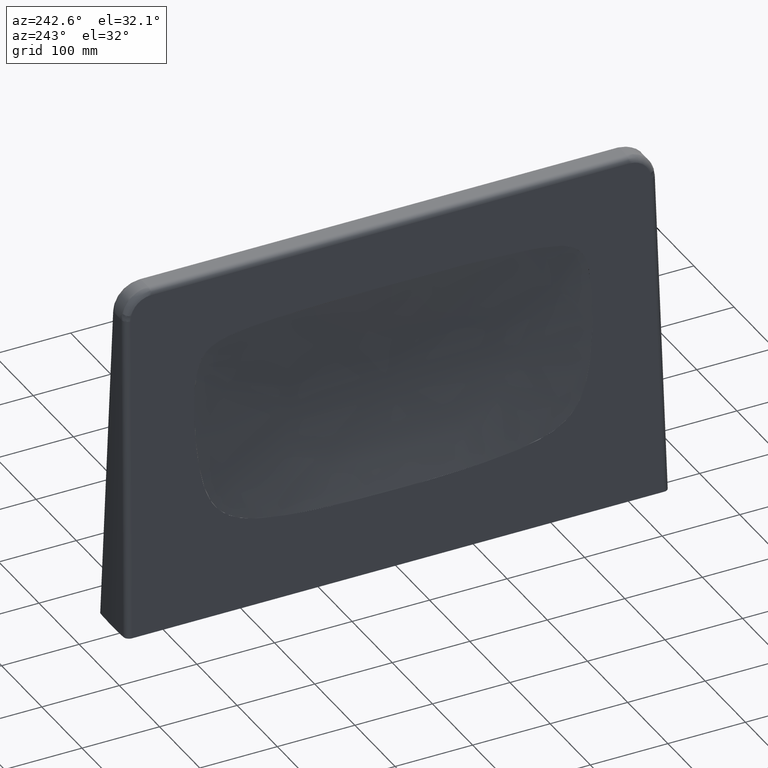
[diagram: clean part render]
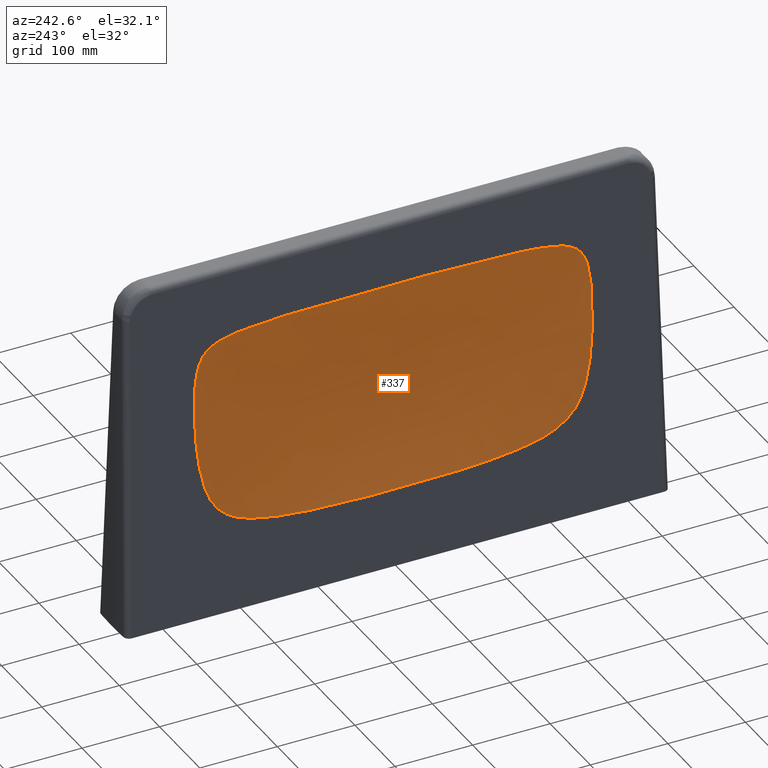
[diagram: same view with one face highlighted and labeled with its STEP entity id]
A machine part, auxiliary view. The second image highlights one B-rep face of the part: STEP entity #337.
In plain terms, the highlighted face is a freeform B-spline surface patch.
Its self-contained STEP definition (entity closure, byte-faithful):
#210=B_SPLINE_SURFACE_WITH_KNOTS('',3,3,((#3240,#3241,#3242,#3243,#3244,
#3245,#3246),(#3247,#3248,#3249,#3250,#3251,#3252,#3253),(#3254,#3255,#3256,
#3257,#3258,#3259,#3260),(#3261,#3262,#3263,#3264,#3265,#3266,#3267),(#3268,
#3269,#3270,#3271,#3272,#3273,#3274),(#3275,#3276,#3277,#3278,#3279,#3280,
#3281),(#3282,#3283,#3284,#3285,#3286,#3287,#3288)),.UNSPECIFIED.,.F.,.F.,
 .F.,(4,3,4),(4,3,4),(0.,0.5,1.),(0.,0.5,1.),.UNSPECIFIED.);
#220=B_SPLINE_CURVE_WITH_KNOTS('',3,(#3137,#3138,#3139,#3140,#3141,#3142,
#3143,#3144,#3145,#3146,#3147,#3148,#3149,#3150,#3151,#3152,#3153,#3154,
#3155,#3156,#3157,#3158,#3159,#3160,#3161,#3162,#3163,#3164,#3165,#3166,
#3167,#3168,#3169,#3170,#3171,#3172,#3173,#3174,#3175,#3176,#3177,#3178,
#3179,#3180,#3181,#3182,#3183,#3184,#3185,#3186,#3187,#3188,#3189,#3190,
#3191,#3192,#3193,#3194,#3195,#3196,#3197,#3198,#3199,#3200,#3201,#3202,
#3203,#3204,#3205,#3206,#3207,#3208,#3209,#3210,#3211,#3212,#3213,#3214,
#3215,#3216,#3217,#3218,#3219,#3220,#3221,#3222,#3223,#3224,#3225,#3226,
#3227,#3228,#3229,#3230,#3231,#3232,#3233,#3234,#3235,#3236,#3237,#3238),
 .UNSPECIFIED.,.T.,.F.,(2,2,2,2,2,2,2,2,2,2,2,2,2,2,2,2,2,2,2,2,2,2,2,2,
2,2,2,2,2,2,2,2,2,2,2,2,2,2,2,2,2,2,2,2,2,2,2,2,2,2,2,2,2),(-0.00390625,
0.,0.0156249999999999,0.0312499999999997,0.0468749999999997,0.0624999999999997,
0.0703124999999997,0.0781249999999997,0.0937499999999998,0.125,0.15625,
0.171875,0.187500000000001,0.203125000000001,0.210937500000001,0.218750000000001,
0.234375000000001,0.250000000000001,0.281250000000001,0.312500000000001,
0.375000000000002,0.437500000000002,0.468750000000002,0.500000000000003,
0.531250000000003,0.546875000000003,0.562500000000003,0.570312500000003,
0.578125000000003,0.585937500000003,0.593750000000003,0.609375000000003,
0.625000000000003,0.656250000000003,0.671875000000002,0.687500000000002,
0.703125000000002,0.710937500000002,0.718750000000002,0.726562500000002,
0.734375000000002,0.750000000000002,0.765625000000002,0.781250000000002,
0.812500000000001,0.875000000000001,0.9375,0.96875,0.984375,0.9921875,0.99609375,
1.,1.015625),.UNSPECIFIED.);
#337=ADVANCED_FACE('',(#482),#210,.T.);
#482=FACE_OUTER_BOUND('',#603,.T.);
#603=EDGE_LOOP('',(#889));
#889=ORIENTED_EDGE('',*,*,#1583,.T.);
#1407=VERTEX_POINT('',#3239);
#1583=EDGE_CURVE('',#1407,#1407,#220,.T.);
#3137=CARTESIAN_POINT('',(70.5749680656748,-450.340596200788,83.1910156315646));
#3138=CARTESIAN_POINT('',(70.631566956683,-459.305493949435,84.5593035566146));
#3139=CARTESIAN_POINT('',(70.6860978573746,-466.4244606778,85.8644339960438));
#3140=CARTESIAN_POINT('',(70.8280045407172,-480.475338019103,89.2182996624284));
#3141=CARTESIAN_POINT('',(70.9149216048042,-487.409877682496,91.256583493031));
#3142=CARTESIAN_POINT('',(71.1511669598997,-500.923614543438,96.7457444910467));
#3143=CARTESIAN_POINT('',(71.3001874908443,-507.398028979203,100.188580841819));
#3144=CARTESIAN_POINT('',(71.6870656239058,-518.960311622476,109.080680351546));
#3145=CARTESIAN_POINT('',(71.9190885705556,-523.832251905651,114.395649288013));
#3146=CARTESIAN_POINT('',(72.3166032655566,-529.810290533465,123.485311854922));
#3147=CARTESIAN_POINT('',(72.4562524561957,-531.571907144578,126.676277396118));
#3148=CARTESIAN_POINT('',(72.7405836929144,-534.6637996729,133.170753625155));
#3149=CARTESIAN_POINT('',(72.8862538582367,-536.009557456249,136.49686127226));
#3150=CARTESIAN_POINT('',(73.3310062597377,-539.600925854104,146.650863043411));
#3151=CARTESIAN_POINT('',(73.6391867904737,-541.41638922404,153.685547193173));
#3152=CARTESIAN_POINT('',(74.5652316869813,-545.804074553429,174.833095454286));
#3153=CARTESIAN_POINT('',(75.1876622670571,-547.420779517781,189.060418116991));
#3154=CARTESIAN_POINT('',(76.4347290775086,-549.61890316955,217.617179590979));
#3155=CARTESIAN_POINT('',(77.059953001533,-550.158393033688,231.959768743173));
#3156=CARTESIAN_POINT('',(77.9988097191028,-550.138314314471,253.527442062133));
#3157=CARTESIAN_POINT('',(78.3110021845414,-549.98707784697,260.70401400048));
#3158=CARTESIAN_POINT('',(78.9334509088631,-549.233392653372,275.017642442328));
#3159=CARTESIAN_POINT('',(79.2437632219395,-548.646236630995,282.156038638188));
#3160=CARTESIAN_POINT('',(79.8608416991249,-546.514456821935,296.348955221442));
#3161=CARTESIAN_POINT('',(80.1730585894701,-544.985745953199,303.528979942575));
#3162=CARTESIAN_POINT('',(80.6061960527253,-540.767197573668,313.477884638366));
#3163=CARTESIAN_POINT('',(80.7467242399998,-538.983232246279,316.703410891091));
#3164=CARTESIAN_POINT('',(80.9961140779999,-534.554506524952,322.420197172625));
#3165=CARTESIAN_POINT('',(81.1056676748223,-531.887871903636,324.927269427199));
#3166=CARTESIAN_POINT('',(81.3783970015409,-522.93360761785,331.153461034039));
#3167=CARTESIAN_POINT('',(81.4855018630044,-515.978808914166,333.575544128229));
#3168=CARTESIAN_POINT('',(81.6433789541736,-501.925152654795,337.112683583314));
#3169=CARTESIAN_POINT('',(81.69431906175,-494.725276385629,338.231244630116));
#3170=CARTESIAN_POINT('',(81.8168972041271,-473.140618327532,340.881483343192));
#3171=CARTESIAN_POINT('',(81.8587695710154,-458.672221309051,341.718351060682));
#3172=CARTESIAN_POINT('',(81.9266401877604,-429.704883579721,343.030841609397));
#3173=CARTESIAN_POINT('',(81.9494546349621,-415.210628728324,343.433460313802));
#3174=CARTESIAN_POINT('',(82.0034884482738,-371.733473913832,344.35241362362));
#3175=CARTESIAN_POINT('',(82.019983841968,-342.743252941298,344.576588485269));
#3176=CARTESIAN_POINT('',(82.031263942818,-284.75880763101,344.740081157297));
#3177=CARTESIAN_POINT('',(82.0253497388865,-255.764347753446,344.663225296496));
#3178=CARTESIAN_POINT('',(81.9957930659563,-212.281139865027,344.207619092178));
#3179=CARTESIAN_POINT('',(81.9824472495118,-197.787737813525,343.996991891871));
#3180=CARTESIAN_POINT('',(81.9449083225345,-168.804721426984,343.353168601495));
#3181=CARTESIAN_POINT('',(81.9211916426846,-154.314920862338,342.930918773486));
#3182=CARTESIAN_POINT('',(81.8498986838017,-125.344613761249,341.540136587035));
#3183=CARTESIAN_POINT('',(81.8059824956801,-110.877498114792,340.655424961179));
#3184=CARTESIAN_POINT('',(81.6739239772042,-89.3894581147579,337.783671249857));
#3185=CARTESIAN_POINT('',(81.61929705895,-82.26003208323,336.578673909104));
#3186=CARTESIAN_POINT('',(81.4427477221869,-68.2104725052921,332.609449412303));
#3187=CARTESIAN_POINT('',(81.3182935288391,-61.2373926974702,329.786848840823));
#3188=CARTESIAN_POINT('',(81.0097348609774,-52.7372898847862,322.732201993196));
#3189=CARTESIAN_POINT('',(80.8895632323391,-50.3275615191662,319.979042476294));
#3190=CARTESIAN_POINT('',(80.6180494011064,-46.3303957148557,313.75027332647));
#3191=CARTESIAN_POINT('',(80.473150926411,-44.81349271997,310.422603170933));
#3192=CARTESIAN_POINT('',(80.1723446078065,-42.3592825186138,303.51062100527));
#3193=CARTESIAN_POINT('',(80.0167009922893,-41.4276381237665,299.932351084599));
#3194=CARTESIAN_POINT('',(79.7054677221947,-39.9346412141613,292.775437493097));
#3195=CARTESIAN_POINT('',(79.5487256158015,-39.367216780191,289.170296419829));
#3196=CARTESIAN_POINT('',(79.0764152086383,-37.989035358401,278.306581492451));
#3197=CARTESIAN_POINT('',(78.7583451173095,-37.4917424703071,270.990194263188));
#3198=CARTESIAN_POINT('',(78.1220984516763,-36.8987355813892,256.361408023632));
#3199=CARTESIAN_POINT('',(77.8037857986126,-36.8136727986789,249.045835437028));
#3200=CARTESIAN_POINT('',(76.848048438672,-36.9860062557497,227.096750993492));
#3201=CARTESIAN_POINT('',(76.2092244489846,-37.645092339486,212.448309566982));
#3202=CARTESIAN_POINT('',(75.2568921975642,-39.5691748418137,190.649957547033));
#3203=CARTESIAN_POINT('',(74.9401943132228,-40.3744546541477,183.407149148569));
#3204=CARTESIAN_POINT('',(74.3094052024693,-42.4728543505939,168.990885333805));
#3205=CARTESIAN_POINT('',(73.9952785465374,-43.760549183069,161.816658955623));
#3206=CARTESIAN_POINT('',(73.3720647118789,-47.1746906199483,147.587421577295));
#3207=CARTESIAN_POINT('',(73.0597459766855,-49.3238937997325,140.458719066662));
#3208=CARTESIAN_POINT('',(72.6156660451142,-53.6187116947917,130.317809291005));
#3209=CARTESIAN_POINT('',(72.471603208252,-55.2306716063648,127.027145573842));
#3210=CARTESIAN_POINT('',(72.1939193055836,-58.9271356261688,120.680679654959));
#3211=CARTESIAN_POINT('',(72.0590952963713,-61.0369624943138,117.597319010943));
#3212=CARTESIAN_POINT('',(71.809503774793,-65.7252660251307,111.883368220655));
#3213=CARTESIAN_POINT('',(71.6950755874478,-68.2901142993983,109.260587990816));
#3214=CARTESIAN_POINT('',(71.4867142399697,-73.855366838681,104.477222333654));
#3215=CARTESIAN_POINT('',(71.3921252810795,-76.8811465495255,102.301509486766));
#3216=CARTESIAN_POINT('',(71.1411867251032,-86.3595453617859,96.5163350819372));
#3217=CARTESIAN_POINT('',(71.0179193222065,-93.1068703420273,93.6553932844618));
#3218=CARTESIAN_POINT('',(70.8193091294073,-107.067134931738,89.0158743331669));
#3219=CARTESIAN_POINT('',(70.7445035570446,-114.274342514468,87.2496408411066));
#3220=CARTESIAN_POINT('',(70.6230496764568,-128.725985872519,84.356433043183));
#3221=CARTESIAN_POINT('',(70.5761661735864,-136.011485644672,83.2237854856397));
#3222=CARTESIAN_POINT('',(70.4591622553232,-157.970715543121,80.3662986991593));
#3223=CARTESIAN_POINT('',(70.41222717369,-172.656901188795,79.1724846617679));
#3224=CARTESIAN_POINT('',(70.3070521802073,-216.743192529439,76.4488970083492));
#3225=CARTESIAN_POINT('',(70.2841932511888,-246.193392139089,75.7751519989488));
#3226=CARTESIAN_POINT('',(70.2685016019023,-305.13345338836,75.3322822373762));
#3227=CARTESIAN_POINT('',(70.2774564572185,-334.587573632073,75.6037808878682));
#3228=CARTESIAN_POINT('',(70.3326387580479,-378.733631577342,77.0990092990621));
#3229=CARTESIAN_POINT('',(70.3583039991763,-393.442931542683,77.7849086479337));
#3230=CARTESIAN_POINT('',(70.4193810847572,-415.489622062784,79.3483207816483));
#3231=CARTESIAN_POINT('',(70.4435992119126,-422.837326011624,79.9606865863553));
#3232=CARTESIAN_POINT('',(70.4889674091073,-433.846537468466,81.0879395704471));
#3233=CARTESIAN_POINT('',(70.5056054764636,-437.511947514001,81.4986445932647));
#3234=CARTESIAN_POINT('',(70.5334672081653,-443.001830094832,82.1812026305844));
#3235=CARTESIAN_POINT('',(70.5432405659665,-444.830413240926,82.4198508944913));
#3236=CARTESIAN_POINT('',(70.5638942077135,-448.484451195109,82.9224174257237));
#3237=CARTESIAN_POINT('',(70.5749680656748,-450.340596200788,83.1910156315646));
#3238=CARTESIAN_POINT('',(70.631566956683,-459.305493949435,84.5593035566146));
#3239=CARTESIAN_POINT('',(70.5862878438764,-452.133575750517,83.4646732165747));
#3240=CARTESIAN_POINT('',(67.8374698028599,-33.7402995578774,74.0953599308691));
#3241=CARTESIAN_POINT('',(70.8548407429669,-33.5734444012359,119.240466170481));
#3242=CARTESIAN_POINT('',(73.4731941414688,-33.4940182525666,164.474793928881));
#3243=CARTESIAN_POINT('',(75.7075300949558,-33.5008391646804,209.791064229892));
#3244=CARTESIAN_POINT('',(77.9418660484427,-33.5076600767943,255.107334530903));
#3245=CARTESIAN_POINT('',(79.7922801984488,-33.6009287287298,300.501421243589));
#3246=CARTESIAN_POINT('',(81.2447048405715,-33.7798467113497,345.850522340025));
#3247=CARTESIAN_POINT('',(69.2150980957401,-120.255766535488,73.7336436496485));
#3248=CARTESIAN_POINT('',(76.4196637846191,-120.025106856861,118.754492355634));
#3249=CARTESIAN_POINT('',(81.0680039692339,-119.914760304097,164.291669750568));
#3250=CARTESIAN_POINT('',(83.1372331298287,-119.923593499156,209.830854123263));
#3251=CARTESIAN_POINT('',(85.2064622904235,-119.932426694215,255.370038495958));
#3252=CARTESIAN_POINT('',(84.6994820544449,-120.060789381678,300.918255696314));
#3253=CARTESIAN_POINT('',(81.6615178644737,-120.31026931223,346.165129767034));
#3254=CARTESIAN_POINT('',(69.8761949502705,-206.831284686571,73.5594763338842));
#3255=CARTESIAN_POINT('',(79.194700662976,-206.71620975175,118.514731975717));
#3256=CARTESIAN_POINT('',(84.8674965381117,-206.660467834989,164.200323188445));
#3257=CARTESIAN_POINT('',(86.8533553645686,-206.664911274702,209.850713256828));
#3258=CARTESIAN_POINT('',(88.8392141910255,-206.669354714414,255.501103325211));
#3259=CARTESIAN_POINT('',(87.1419780860166,-206.734155605403,301.127122205026));
#3260=CARTESIAN_POINT('',(81.8368479288807,-206.858457679549,346.323577265105));
#3261=CARTESIAN_POINT('',(69.8766774693481,-293.406519158474,73.5593502295091));
#3262=CARTESIAN_POINT('',(79.1966987874891,-293.406395035848,118.514558012387));
#3263=CARTESIAN_POINT('',(84.8702292617396,-293.406334910535,164.200253950337));
#3264=CARTESIAN_POINT('',(86.8560283168252,-293.406339709254,209.850724288583));
#3265=CARTESIAN_POINT('',(88.8418273719108,-293.406344507972,255.501194626829));
#3266=CARTESIAN_POINT('',(87.1437378724373,-293.406414396474,301.127272111382));
#3267=CARTESIAN_POINT('',(81.8369820385427,-293.406548467799,346.323689787513));
#3268=CARTESIAN_POINT('',(69.8771599884256,-379.981753630377,73.5592241251339));
#3269=CARTESIAN_POINT('',(79.1986969120022,-380.096580319946,118.514384049057));
#3270=CARTESIAN_POINT('',(84.8729619853676,-380.152201986081,164.200184712229));
#3271=CARTESIAN_POINT('',(86.8587012690818,-380.147768143805,209.850735320338));
#3272=CARTESIAN_POINT('',(88.844440552796,-380.14333430153,255.501285928446));
#3273=CARTESIAN_POINT('',(87.1454976588581,-380.078673187545,301.127422017739));
#3274=CARTESIAN_POINT('',(81.8371161482047,-379.954639256049,346.323802309921));
#3275=CARTESIAN_POINT('',(69.2170255205926,-466.557313659221,73.7331282341886));
#3276=CARTESIAN_POINT('',(76.427655985433,-466.787851121994,118.753797130559));
#3277=CARTESIAN_POINT('',(81.078934865506,-466.898143544432,164.291392779661));
#3278=CARTESIAN_POINT('',(83.1479249389307,-466.889315134952,209.83089825087));
#3279=CARTESIAN_POINT('',(85.2169150123555,-466.880486725472,255.370403722079));
#3280=CARTESIAN_POINT('',(84.7065212261707,-466.752187993056,300.918855958601));
#3281=CARTESIAN_POINT('',(81.6620547632059,-466.502839963943,346.165593991401));
#3282=CARTESIAN_POINT('',(67.8404436732142,-553.072867735403,74.0945785385634));
#3283=CARTESIAN_POINT('',(70.8668536033433,-553.239860398624,119.239413247042));
#3284=CARTESIAN_POINT('',(73.4895884076557,-553.319353189927,164.474377763722));
#3285=CARTESIAN_POINT('',(75.7235679978618,-553.312527943386,209.791130540106));
#3286=CARTESIAN_POINT('',(77.9575475880679,-553.305702696845,255.10788331649));
#3287=CARTESIAN_POINT('',(79.8028735501091,-553.212358407834,300.502320028531));
#3288=CARTESIAN_POINT('',(81.2456045660714,-553.033288351167,345.851201465367));